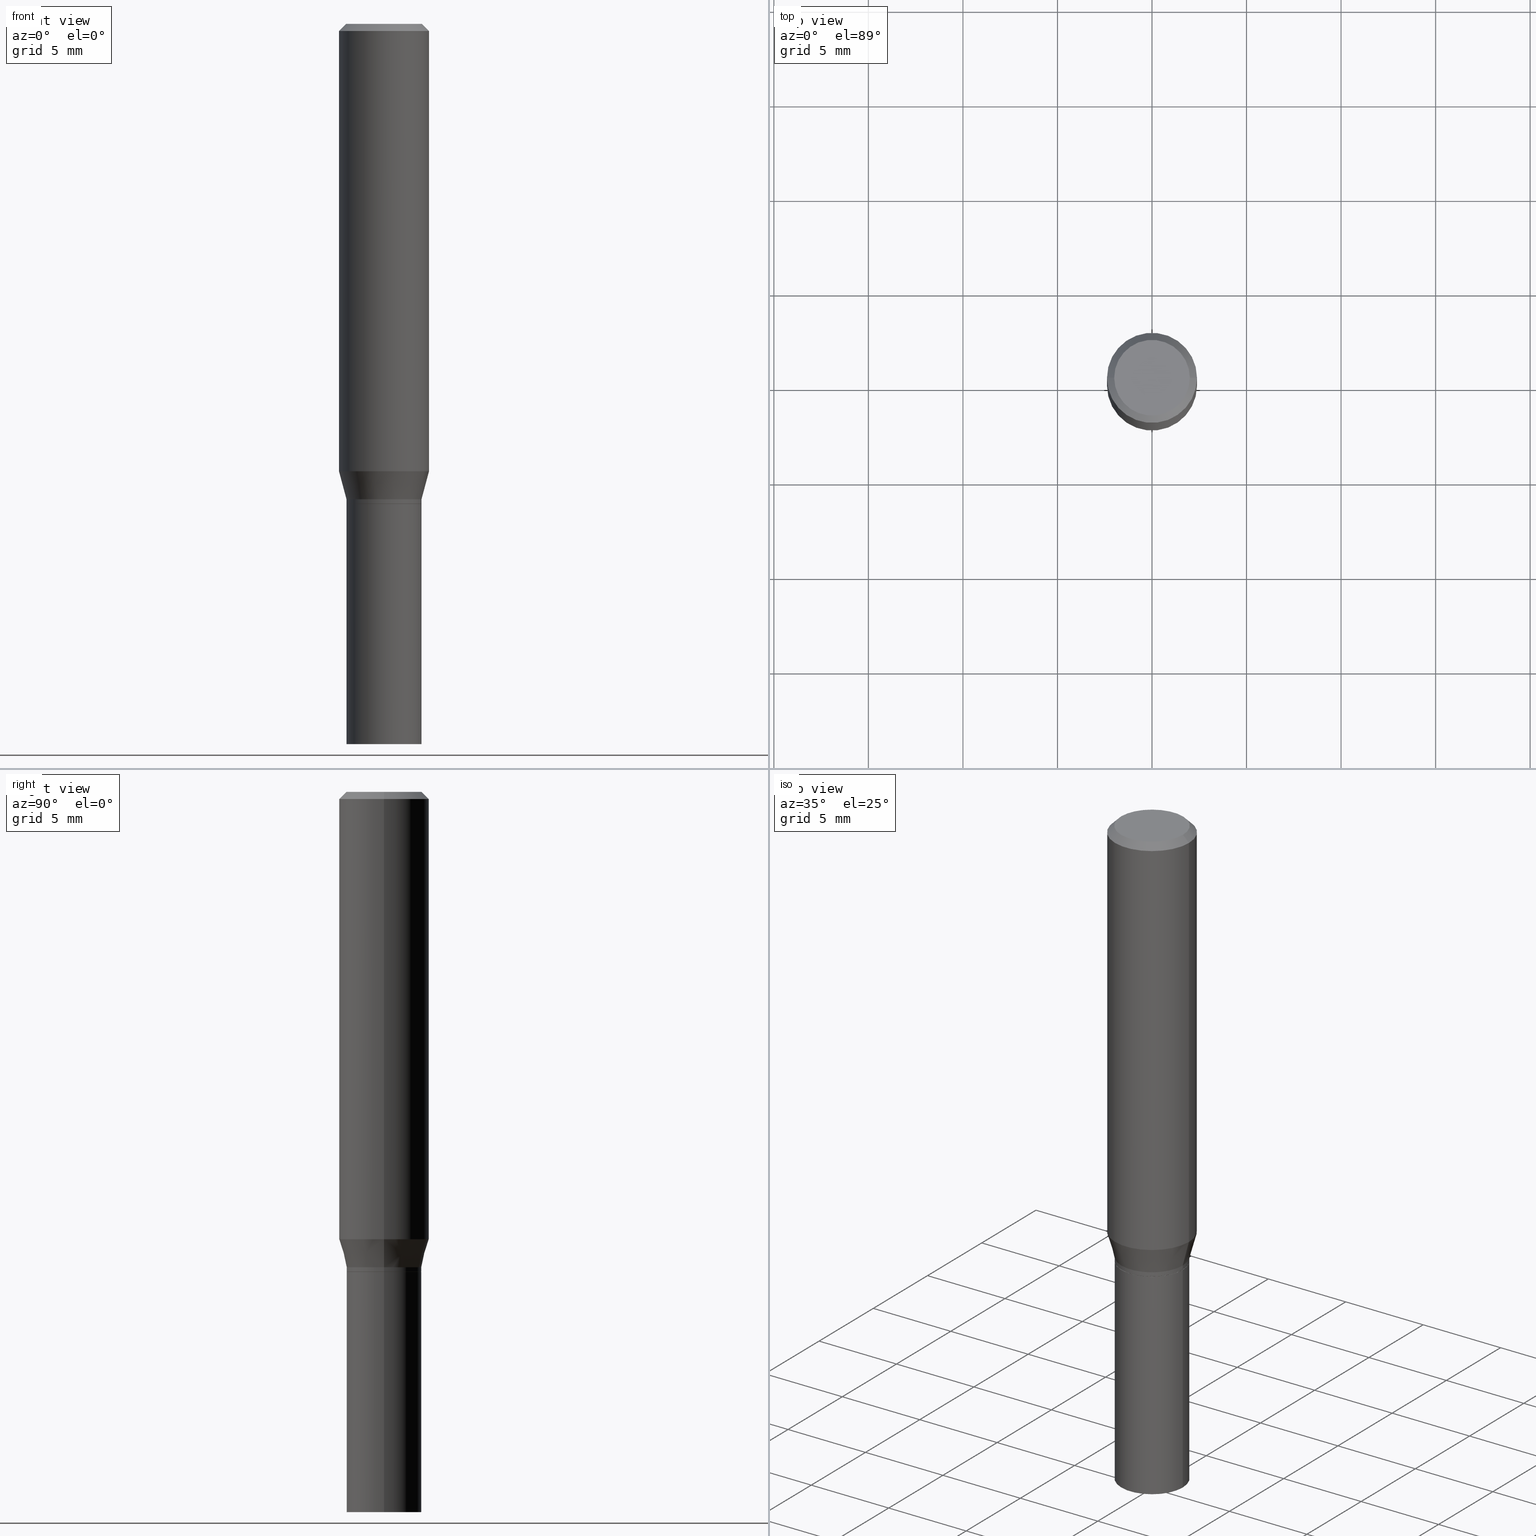
[diagram: canonical four-view strip — front | top / right | iso, engineering-drawing reading convention]
A machine part, canonical four-view strip (front | top / right | iso — engineering-drawing reading convention). The complete STEP part file that produces these views, byte-faithful:
ISO-10303-21;
HEADER;
FILE_DESCRIPTION (( 'STEP AP203' ),
    '1' );
FILE_NAME ('30519.STEP',
    '2024-03-13T16:13:51',
    ( '' ),
    ( '' ),
    'SwSTEP 2.0',
    'SolidWorks 2023',
    '' );
FILE_SCHEMA (( 'CONFIG_CONTROL_DESIGN' ));
ENDSEC;

DATA;
#1 = DIRECTION ( 'NONE',  ( 1.000000000000000000, -6.982962677686266711E-15, 0.000000000000000000 ) ) ;
#2 = DIRECTION ( 'NONE',  ( 1.000000000000000000, -6.982962677686267499E-15, 4.876807983162778740E-29 ) ) ;
#3 = EDGE_CURVE ( 'NONE', #154, #230, #199, .T. ) ;
#4 = ORIENTED_EDGE ( 'NONE', *, *, #166, .T. ) ;
#5 = AXIS2_PLACEMENT_3D ( 'NONE', #135, #377, #349 ) ;
#6 = ORIENTED_EDGE ( 'NONE', *, *, #17, .F. ) ;
#7 = PRODUCT_RELATED_PRODUCT_CATEGORY ( 'detail', '', ( #411 ) ) ;
#8 = DIRECTION ( 'NONE',  ( 1.000000000000000000, -6.982962677686266711E-15, 0.000000000000000000 ) ) ;
#9 = CARTESIAN_POINT ( 'NONE',  ( 3.668203209277704895E-29, -5.237222008264718177E-15, -1.500000000000000222 ) ) ;
#10 = EDGE_CURVE ( 'NONE', #308, #464, #155, .T. ) ;
#11 = DIRECTION ( 'NONE',  ( -2.445468806185136597E-29, 3.491481338843145583E-15, 1.000000000000000000 ) ) ;
#12 = APPROVAL_DATE_TIME ( #321, #262 ) ;
#13 = CARTESIAN_POINT ( 'NONE',  ( 0.07810000000000004439, -4.035104983301021910E-15, -0.9995000000000000551 ) ) ;
#14 = VECTOR ( 'NONE', #94, 39.37007874015748143 ) ;
#15 = DIRECTION ( 'NONE',  ( 0.7071067811865469066, -7.319954787623254468E-15, -0.7071067811865481278 ) ) ;
#16 = PERSON_AND_ORGANIZATION_ROLE ( 'creator' ) ;
#17 = EDGE_CURVE ( 'NONE', #217, #190, #434, .T. ) ;
#18 = CARTESIAN_POINT ( 'NONE',  ( -0.09375000000000001388, -9.863727894979499703E-16, -0.01499999999999999944 ) ) ;
#19 = EDGE_LOOP ( 'NONE', ( #229, #270, #41, #375 ) ) ;
#20 = EDGE_CURVE ( 'NONE', #136, #407, #265, .T. ) ;
#21 = ORIENTED_EDGE ( 'NONE', *, *, #44, .F. ) ;
#22 = VECTOR ( 'NONE', #347, 39.37007874015748143 ) ;
#23 = CARTESIAN_POINT ( 'NONE',  ( 0.000000000000000000, 0.000000000000000000, 0.000000000000000000 ) ) ;
#24 = CONICAL_SURFACE ( 'NONE', #228, 0.07810000000000004439, 0.2617993877991501850 ) ;
#25 = VERTEX_POINT ( 'NONE', #278 ) ;
#26 = CARTESIAN_POINT ( 'NONE',  ( 2.445468806185136877E-29, -3.491481338843145977E-15, -1.000000000000000222 ) ) ;
#27 = CARTESIAN_POINT ( 'NONE',  ( -0.07810000000000004439, -2.934801721545085420E-15, -0.9995000000000000551 ) ) ;
#28 = ADVANCED_FACE ( 'NONE', ( #412 ), #413, .T. ) ;
#29 =( LENGTH_UNIT ( ) NAMED_UNIT ( * ) SI_UNIT ( $, .METRE. ) );
#30 = DIRECTION ( 'NONE',  ( -2.445468806185136597E-29, 3.491481338843145583E-15, 1.000000000000000000 ) ) ;
#31 = DIRECTION ( 'NONE',  ( -2.445468806185136597E-29, 3.491481338843145583E-15, 1.000000000000000000 ) ) ;
#32 = DIRECTION ( 'NONE',  ( -2.445468806185136597E-29, 3.491481338843145583E-15, 1.000000000000000000 ) ) ;
#33 = CIRCLE ( 'NONE', #128, 0.07875000000000001443 ) ;
#34 = LOCAL_TIME ( 12, 13, 51.00000000000000000, #82 ) ;
#35 = CARTESIAN_POINT ( 'NONE',  ( 3.668203209277705088E-31, -5.237222008264718399E-17, -0.01499999999999999944 ) ) ;
#36 = AXIS2_PLACEMENT_3D ( 'NONE', #238, #343, #8 ) ;
#37 = LOCAL_TIME ( 12, 13, 51.00000000000000000, #287 ) ;
#38 = ORIENTED_EDGE ( 'NONE', *, *, #20, .T. ) ;
#39 = ORIENTED_EDGE ( 'NONE', *, *, #198, .F. ) ;
#40 = DIRECTION ( 'NONE',  ( -2.445468806185136597E-29, 3.491481338843145583E-15, 1.000000000000000000 ) ) ;
#41 = ORIENTED_EDGE ( 'NONE', *, *, #195, .F. ) ;
#42 = DIRECTION ( 'NONE',  ( 1.000000000000000000, -6.982962677686267499E-15, 4.876807983162778740E-29 ) ) ;
#43 = CIRCLE ( 'NONE', #256, 0.07810000000000004439 ) ;
#44 = EDGE_CURVE ( 'NONE', #433, #239, #33, .T. ) ;
#45 = ORIENTED_EDGE ( 'NONE', *, *, #44, .T. ) ;
#46 = DIRECTION ( 'NONE',  ( 1.000000000000000000, -6.982962677686265922E-15, 4.876176775795935793E-29 ) ) ;
#47 = CARTESIAN_POINT ( 'NONE',  ( -0.07875000000000001443, 5.760944209091169839E-16, 1.724453912998643423E-17 ) ) ;
#48 = CARTESIAN_POINT ( 'NONE',  ( 3.668203209277704895E-29, -5.237222008264718177E-15, -1.500000000000000222 ) ) ;
#49 = APPLICATION_PROTOCOL_DEFINITION ( 'international standard', 'config_control_design', 1994, #450 ) ;
#50 = ORIENTED_EDGE ( 'NONE', *, *, #192, .T. ) ;
#51 = FACE_OUTER_BOUND ( 'NONE', #87, .T. ) ;
#52 = ADVANCED_BREP_SHAPE_REPRESENTATION ( '30519', ( #73, #396, #303 ), #368 ) ;
#53 = PERSON_AND_ORGANIZATION ( #188, #129 ) ;
#54 = EDGE_CURVE ( 'NONE', #402, #175, #118, .T. ) ;
#55 = EDGE_LOOP ( 'NONE', ( #117, #218, #50, #457 ) ) ;
#56 = APPROVAL_STATUS ( 'not_yet_approved' ) ;
#57 = CARTESIAN_POINT ( 'NONE',  ( 2.278182611636715174E-29, -3.252640988463440710E-15, -0.9315934048615475138 ) ) ;
#58 = EDGE_CURVE ( 'NONE', #190, #217, #280, .T. ) ;
#59 = EDGE_LOOP ( 'NONE', ( #150, #108 ) ) ;
#60 = DIRECTION ( 'NONE',  ( -2.445468806185136597E-29, 3.491481338843145583E-15, 1.000000000000000000 ) ) ;
#61 = AXIS2_PLACEMENT_3D ( 'NONE', #373, #449, #247 ) ;
#62 = CARTESIAN_POINT ( 'NONE',  ( 3.576687321579069994E-29, -5.368277968210015545E-15, -1.500000000000000222 ) ) ;
#63 = CARTESIAN_POINT ( 'NONE',  ( 2.421014118123285332E-29, -3.456566525454714328E-15, -0.9900000000000001021 ) ) ;
#64 = CYLINDRICAL_SURFACE ( 'NONE', #210, 0.07810000000000000275 ) ;
#65 = PRODUCT_DEFINITION ( 'UNKNOWN', '', #324, #90 ) ;
#66 = ORIENTED_EDGE ( 'NONE', *, *, #337, .F. ) ;
#67 = AXIS2_PLACEMENT_3D ( 'NONE', #131, #441, #423 ) ;
#68 = CC_DESIGN_APPROVAL ( #262, ( #65 ) ) ;
#69 = ORIENTED_EDGE ( 'NONE', *, *, #401, .T. ) ;
#70 = ADVANCED_FACE ( 'NONE', ( #341 ), #196, .T. ) ;
#71 = ORIENTED_EDGE ( 'NONE', *, *, #192, .F. ) ;
#72 = ORIENTED_EDGE ( 'NONE', *, *, #198, .T. ) ;
#73 = MANIFOLD_SOLID_BREP ( 'Body-Move/Copy2[1]', #462 ) ;
#74 = VECTOR ( 'NONE', #427, 39.37007874015748143 ) ;
#75 = AXIS2_PLACEMENT_3D ( 'NONE', #133, #249, #167 ) ;
#76 = APPROVAL_PERSON_ORGANIZATION ( #89, #262, #248 ) ;
#77 = EDGE_LOOP ( 'NONE', ( #161, #38, #387, #6 ) ) ;
#78 = CARTESIAN_POINT ( 'NONE',  ( 2.421014118123285332E-29, -3.456566525454714328E-15, -0.9900000000000001021 ) ) ;
#79 = ORIENTED_EDGE ( 'NONE', *, *, #54, .F. ) ;
#80 = ORIENTED_EDGE ( 'NONE', *, *, #364, .F. ) ;
#81 = DIRECTION ( 'NONE',  ( 1.000000000000000000, -6.982962677686269077E-15, 0.000000000000000000 ) ) ;
#82 = COORDINATED_UNIVERSAL_TIME_OFFSET ( 5, 0, .BEHIND. ) ;
#83 = EDGE_LOOP ( 'NONE', ( #39, #266, #123, #370 ) ) ;
#84 = DIRECTION ( 'NONE',  ( -2.445468806185136597E-29, 3.491481338843145583E-15, 1.000000000000000000 ) ) ;
#85 = DIRECTION ( 'NONE',  ( 1.000000000000000000, 0.000000000000000000, 0.000000000000000000 ) ) ;
#86 = CIRCLE ( 'NONE', #369, 0.07810000000000004439 ) ;
#87 = EDGE_LOOP ( 'NONE', ( #255, #460, #358, #465 ) ) ;
#88 = LINE ( 'NONE', #378, #97 ) ;
#89 = PERSON_AND_ORGANIZATION ( #188, #129 ) ;
#90 = DESIGN_CONTEXT ( 'detailed design', #450, 'design' ) ;
#91 = DATE_TIME_ROLE ( 'classification_date' ) ;
#92 = DIRECTION ( 'NONE',  ( -2.445468806185136597E-29, 3.491481338843145583E-15, 1.000000000000000000 ) ) ;
#93 = ADVANCED_FACE ( 'NONE', ( #436 ), #420, .F. ) ;
#94 = DIRECTION ( 'NONE',  ( -2.445468806185136877E-29, 3.491481338843145188E-15, 1.000000000000000000 ) ) ;
#95 = ORIENTED_EDGE ( 'NONE', *, *, #263, .F. ) ;
#96 = CARTESIAN_POINT ( 'NONE',  ( 5.453693851273217925E-16, 0.07809999999999651943, -1.000000000000000444 ) ) ;
#97 = VECTOR ( 'NONE', #416, 39.37007874015748143 ) ;
#98 = APPROVAL_PERSON_ORGANIZATION ( #223, #186, #452 ) ;
#99 = LINE ( 'NONE', #388, #74 ) ;
#100 = DIRECTION ( 'NONE',  ( -1.000000000000000000, 6.982962677686265922E-15, -4.876176775795935793E-29 ) ) ;
#101 = CARTESIAN_POINT ( 'NONE',  ( 0.07875000000000001443, -6.179040623491182236E-16, 1.724453912999445534E-17 ) ) ;
#102 = DIRECTION ( 'NONE',  ( 2.445468806185136597E-29, -3.491481338843145583E-15, -1.000000000000000000 ) ) ;
#103 = EDGE_LOOP ( 'NONE', ( #69, #371, #390, #71 ) ) ;
#104 = LINE ( 'NONE', #425, #430 ) ;
#105 = EDGE_CURVE ( 'NONE', #231, #308, #43, .T. ) ;
#106 =( CONVERSION_BASED_UNIT ( 'INCH', #325 ) LENGTH_UNIT ( ) NAMED_UNIT ( #220 ) );
#107 = LINE ( 'NONE', #329, #114 ) ;
#108 = ORIENTED_EDGE ( 'NONE', *, *, #17, .T. ) ;
#109 = CYLINDRICAL_SURFACE ( 'NONE', #211, 0.07810000000000004439 ) ;
#110 = DIRECTION ( 'NONE',  ( 1.000000000000000000, -6.982962677686266711E-15, 0.000000000000000000 ) ) ;
#111 =( NAMED_UNIT ( * ) SI_UNIT ( $, .STERADIAN. ) SOLID_ANGLE_UNIT ( ) );
#112 = ADVANCED_FACE ( 'NONE', ( #453 ), #137, .T. ) ;
#113 = EDGE_LOOP ( 'NONE', ( #4, #45 ) ) ;
#114 = VECTOR ( 'NONE', #328, 39.37007874015748143 ) ;
#115 = CIRCLE ( 'NONE', #351, 0.09375000000000001388 ) ;
#116 = ORIENTED_EDGE ( 'NONE', *, *, #235, .F. ) ;
#117 = ORIENTED_EDGE ( 'NONE', *, *, #3, .F. ) ;
#118 = CIRCLE ( 'NONE', #227, 0.07810000000000004439 ) ;
#119 = AXIS2_PLACEMENT_3D ( 'NONE', #62, #320, #455 ) ;
#120 = DIRECTION ( 'NONE',  ( -2.445468806185136597E-29, 3.491481338843145583E-15, 1.000000000000000000 ) ) ;
#121 = EDGE_LOOP ( 'NONE', ( #409, #140, #152, #66 ) ) ;
#122 = ORIENTED_EDGE ( 'NONE', *, *, #401, .F. ) ;
#123 = ORIENTED_EDGE ( 'NONE', *, *, #205, .T. ) ;
#124 = CARTESIAN_POINT ( 'NONE',  ( 2.421014118123285332E-29, -3.456566525454714328E-15, -0.9900000000000001021 ) ) ;
#125 = EDGE_LOOP ( 'NONE', ( #187, #95 ) ) ;
#126 = LINE ( 'NONE', #279, #22 ) ;
#127 = DIRECTION ( 'NONE',  ( 0.000000000000000000, 0.000000000000000000, 1.000000000000000000 ) ) ;
#128 = AXIS2_PLACEMENT_3D ( 'NONE', #405, #336, #2 ) ;
#129 = ORGANIZATION ( 'UNSPECIFIED', 'UNSPECIFIED', '' ) ;
#130 = PERSON_AND_ORGANIZATION_ROLE ( 'design_supplier' ) ;
#131 = CARTESIAN_POINT ( 'NONE',  ( 5.499083108677934443E-16, 0.07875000000000001443, -2.663318858689025652E-16 ) ) ;
#132 = EDGE_CURVE ( 'NONE', #305, #175, #104, .T. ) ;
#133 = CARTESIAN_POINT ( 'NONE',  ( 2.444246071782044356E-29, -3.489735598173724079E-15, -0.9995000000000000551 ) ) ;
#134 = DIRECTION ( 'NONE',  ( -2.445468806185136597E-29, 3.491481338843145583E-15, 1.000000000000000000 ) ) ;
#135 = CARTESIAN_POINT ( 'NONE',  ( 3.668203209277705088E-31, -5.237222008264718399E-17, -0.01499999999999999944 ) ) ;
#136 = VERTEX_POINT ( 'NONE', #391 ) ;
#137 = CYLINDRICAL_SURFACE ( 'NONE', #383, 0.09375000000000001388 ) ;
#138 = CIRCLE ( 'NONE', #36, 0.07760000000000000231 ) ;
#139 = FACE_OUTER_BOUND ( 'NONE', #361, .T. ) ;
#140 = ORIENTED_EDGE ( 'NONE', *, *, #151, .T. ) ;
#141 = CARTESIAN_POINT ( 'NONE',  ( 2.445468806185136877E-29, -3.491481338843145977E-15, -1.000000000000000222 ) ) ;
#142 = DIRECTION ( 'NONE',  ( 1.000000000000000000, -6.982962677686265922E-15, 0.000000000000000000 ) ) ;
#143 = CARTESIAN_POINT ( 'NONE',  ( 0.000000000000000000, 0.000000000000000000, 0.000000000000000000 ) ) ;
#144 = COORDINATED_UNIVERSAL_TIME_OFFSET ( 5, 0, .BEHIND. ) ;
#145 = CC_DESIGN_PERSON_AND_ORGANIZATION_ASSIGNMENT ( #445, #408, ( #324 ) ) ;
#146 = ADVANCED_FACE ( 'NONE', ( #261 ), #290, .T. ) ;
#147 = DIRECTION ( 'NONE',  ( 1.000000000000000000, -6.982962677686266711E-15, 4.876176775795936353E-29 ) ) ;
#148 = VECTOR ( 'NONE', #340, 39.37007874015748143 ) ;
#149 = EDGE_CURVE ( 'NONE', #25, #402, #362, .T. ) ;
#150 = ORIENTED_EDGE ( 'NONE', *, *, #58, .T. ) ;
#151 = EDGE_CURVE ( 'NONE', #136, #217, #206, .T. ) ;
#152 = ORIENTED_EDGE ( 'NONE', *, *, #58, .F. ) ;
#153 = ADVANCED_FACE ( 'NONE', ( #289 ), #184, .T. ) ;
#154 = VERTEX_POINT ( 'NONE', #316 ) ;
#155 = LINE ( 'NONE', #194, #466 ) ;
#156 = EDGE_CURVE ( 'NONE', #175, #308, #283, .T. ) ;
#157 = CARTESIAN_POINT ( 'NONE',  ( -0.09375000000000001388, 6.661338147750940229E-16, -4.611501647113973995E-30 ) ) ;
#158 = AXIS2_PLACEMENT_3D ( 'NONE', #48, #84, #311 ) ;
#159 = LOCAL_TIME ( 12, 13, 51.00000000000000000, #144 ) ;
#160 = COORDINATED_UNIVERSAL_TIME_OFFSET ( 5, 0, .BEHIND. ) ;
#161 = ORIENTED_EDGE ( 'NONE', *, *, #151, .F. ) ;
#162 = FACE_OUTER_BOUND ( 'NONE', #125, .T. ) ;
#163 = ORIENTED_EDGE ( 'NONE', *, *, #20, .F. ) ;
#164 = DIRECTION ( 'NONE',  ( 1.000000000000000000, -6.982962677686266711E-15, 0.000000000000000000 ) ) ;
#165 = APPROVAL ( #202, 'UNSPECIFIED' ) ;
#166 = EDGE_CURVE ( 'NONE', #239, #433, #295, .T. ) ;
#167 = DIRECTION ( 'NONE',  ( 1.000000000000000000, -6.982962677686269077E-15, 0.000000000000000000 ) ) ;
#168 = AXIS2_PLACEMENT_3D ( 'NONE', #96, #257, #100 ) ;
#169 = DATE_TIME_ROLE ( 'creation_date' ) ;
#170 = CARTESIAN_POINT ( 'NONE',  ( -0.07760000000000000231, -2.940100175893308216E-15, -1.000000000000000222 ) ) ;
#171 = CALENDAR_DATE ( 2024, 13, 3 ) ;
#172 = ORIENTED_EDGE ( 'NONE', *, *, #195, .T. ) ;
#173 = FACE_OUTER_BOUND ( 'NONE', #113, .T. ) ;
#174 = PLANE ( 'NONE',  #119 ) ;
#175 = VERTEX_POINT ( 'NONE', #13 ) ;
#176 = DIRECTION ( 'NONE',  ( 0.7071067811865595631, -2.468850131082382884E-15, 0.7071067811865354713 ) ) ;
#177 = CIRCLE ( 'NONE', #75, 0.07810000000000004439 ) ;
#178 = CC_DESIGN_SECURITY_CLASSIFICATION ( #404, ( #324 ) ) ;
#179 = DIRECTION ( 'NONE',  ( -2.445468806185136597E-29, 3.491481338843145583E-15, 1.000000000000000000 ) ) ;
#180 = ORIENTED_EDGE ( 'NONE', *, *, #263, .T. ) ;
#181 = DIRECTION ( 'NONE',  ( 1.000000000000000000, -6.982962677686269077E-15, 0.000000000000000000 ) ) ;
#182 = CARTESIAN_POINT ( 'NONE',  ( 3.668203209277705088E-31, -5.237222008264718399E-17, -0.01499999999999999944 ) ) ;
#183 = DIRECTION ( 'NONE',  ( 1.000000000000000000, -6.982962677686266711E-15, 4.876176775795935232E-29 ) ) ;
#184 = CONICAL_SURFACE ( 'NONE', #61, 0.07760000000000000231, 0.7853981633974653764 ) ;
#185 = CARTESIAN_POINT ( 'NONE',  ( 0.07760000000000000231, -4.033359242631600406E-15, -1.000000000000000222 ) ) ;
#186 = APPROVAL ( #56, 'UNSPECIFIED' ) ;
#187 = ORIENTED_EDGE ( 'NONE', *, *, #271, .F. ) ;
#188 = PERSON ( 'UNSPECIFIED', 'UNSPECIFIED', 'UNSPECIFIED', ('UNSPECIFIED'), ('UNSPECIFIED'), ('UNSPECIFIED') ) ;
#189 = EDGE_CURVE ( 'NONE', #231, #154, #126, .T. ) ;
#190 = VERTEX_POINT ( 'NONE', #414 ) ;
#191 = DIRECTION ( 'NONE',  ( 2.445468806185136597E-29, -3.491481338843145583E-15, -1.000000000000000000 ) ) ;
#192 = EDGE_CURVE ( 'NONE', #464, #327, #88, .T. ) ;
#193 = VECTOR ( 'NONE', #213, 39.37007874015748143 ) ;
#194 = CARTESIAN_POINT ( 'NONE',  ( 0.07810000000000004439, -4.001935910582012553E-15, -0.9900000000000001021 ) ) ;
#195 = EDGE_CURVE ( 'NONE', #175, #402, #177, .T. ) ;
#196 = CYLINDRICAL_SURFACE ( 'NONE', #244, 0.07810000000000004439 ) ;
#197 = ORIENTED_EDGE ( 'NONE', *, *, #10, .F. ) ;
#198 = EDGE_CURVE ( 'NONE', #433, #327, #380, .T. ) ;
#199 = LINE ( 'NONE', #157, #148 ) ;
#200 = LINE ( 'NONE', #252, #193 ) ;
#201 = AXIS2_PLACEMENT_3D ( 'NONE', #57, #216, #110 ) ;
#202 = APPROVAL_STATUS ( 'not_yet_approved' ) ;
#203 = CARTESIAN_POINT ( 'NONE',  ( 2.445468806185136877E-29, -3.491481338843145977E-15, -1.000000000000000222 ) ) ;
#204 = CARTESIAN_POINT ( 'NONE',  ( 2.445468806185136877E-29, -3.491481338843145977E-15, -1.000000000000000222 ) ) ;
#205 = EDGE_CURVE ( 'NONE', #239, #230, #200, .T. ) ;
#206 = LINE ( 'NONE', #286, #323 ) ;
#207 = CARTESIAN_POINT ( 'NONE',  ( -0.07810000000000004439, -2.744069911257211227E-15, -0.9900000000000001021 ) ) ;
#208 = CLOSED_SHELL ( 'NONE', ( #432, #146, #399, #332, #437, #226, #112, #28, #253, #267, #153, #70 ) ) ;
#209 = PERSON_AND_ORGANIZATION ( #188, #129 ) ;
#210 = AXIS2_PLACEMENT_3D ( 'NONE', #292, #259, #183 ) ;
#211 = AXIS2_PLACEMENT_3D ( 'NONE', #394, #356, #147 ) ;
#212 = PERSON_AND_ORGANIZATION_ROLE ( 'classification_officer' ) ;
#213 = DIRECTION ( 'NONE',  ( -0.7071067811865469066, 2.468850131082250355E-15, -0.7071067811865481278 ) ) ;
#214 = DATE_AND_TIME ( #417, #159 ) ;
#215 = DIRECTION ( 'NONE',  ( -2.445468806185136597E-29, 3.491481338843145583E-15, 1.000000000000000000 ) ) ;
#216 = DIRECTION ( 'NONE',  ( -2.445468806185136597E-29, 3.491481338843145583E-15, 1.000000000000000000 ) ) ;
#217 = VERTEX_POINT ( 'NONE', #384 ) ;
#218 = ORIENTED_EDGE ( 'NONE', *, *, #366, .T. ) ;
#219 = DIRECTION ( 'NONE',  ( 1.000000000000000000, -6.982962677686266711E-15, 0.000000000000000000 ) ) ;
#220 = DIMENSIONAL_EXPONENTS ( 1.000000000000000000, 0.000000000000000000, 0.000000000000000000, 0.000000000000000000, 0.000000000000000000, 0.000000000000000000, 0.000000000000000000 ) ;
#221 = LOCAL_TIME ( 12, 13, 51.00000000000000000, #379 ) ;
#222 = DIRECTION ( 'NONE',  ( -1.000000000000000000, 6.982962677686265922E-15, 0.000000000000000000 ) ) ;
#223 = PERSON_AND_ORGANIZATION ( #188, #129 ) ;
#224 = CARTESIAN_POINT ( 'NONE',  ( 0.09375000000000001388, -3.907293739496527425E-15, -0.9315934048615475138 ) ) ;
#225 = DIRECTION ( 'NONE',  ( 1.000000000000000000, -6.982962677686265922E-15, 4.876176775795935793E-29 ) ) ;
#226 = ADVANCED_FACE ( 'NONE', ( #51 ), #367, .T. ) ;
#227 = AXIS2_PLACEMENT_3D ( 'NONE', #274, #301, #81 ) ;
#228 = AXIS2_PLACEMENT_3D ( 'NONE', #63, #291, #181 ) ;
#229 = ORIENTED_EDGE ( 'NONE', *, *, #271, .T. ) ;
#230 = VERTEX_POINT ( 'NONE', #18 ) ;
#231 = VERTEX_POINT ( 'NONE', #207 ) ;
#232 = AXIS2_PLACEMENT_3D ( 'NONE', #35, #191, #272 ) ;
#233 = LOCAL_TIME ( 12, 13, 51.00000000000000000, #160 ) ;
#234 = ORIENTED_EDGE ( 'NONE', *, *, #288, .T. ) ;
#235 = EDGE_CURVE ( 'NONE', #407, #136, #299, .T. ) ;
#236 = DIRECTION ( 'NONE',  ( 1.000000000000000000, -6.982962677686266711E-15, 4.876176775795936353E-29 ) ) ;
#237 = ORIENTED_EDGE ( 'NONE', *, *, #246, .T. ) ;
#238 = CARTESIAN_POINT ( 'NONE',  ( 2.445468806185136877E-29, -3.491481338843145977E-15, -1.000000000000000222 ) ) ;
#239 = VERTEX_POINT ( 'NONE', #47 ) ;
#240 = DIRECTION ( 'NONE',  ( 1.000000000000000000, -6.982962677686266711E-15, 0.000000000000000000 ) ) ;
#241 = CALENDAR_DATE ( 2024, 13, 3 ) ;
#242 = ORIENTED_EDGE ( 'NONE', *, *, #132, .T. ) ;
#243 = CARTESIAN_POINT ( 'NONE',  ( -4.217098251943042903E-46, 6.020898656931179793E-32, 1.724453912999037237E-17 ) ) ;
#244 = AXIS2_PLACEMENT_3D ( 'NONE', #439, #134, #236 ) ;
#245 = AXIS2_PLACEMENT_3D ( 'NONE', #182, #102, #222 ) ;
#246 = EDGE_CURVE ( 'NONE', #327, #230, #335, .T. ) ;
#247 = DIRECTION ( 'NONE',  ( 1.000000000000000000, -6.982962677686266711E-15, 0.000000000000000000 ) ) ;
#248 = APPROVAL_ROLE ( '' ) ;
#249 = DIRECTION ( 'NONE',  ( -2.445468806185136597E-29, 3.491481338843145583E-15, 1.000000000000000000 ) ) ;
#250 = CARTESIAN_POINT ( 'NONE',  ( 0.000000000000000000, 0.000000000000000000, 0.000000000000000000 ) ) ;
#251 = FACE_OUTER_BOUND ( 'NONE', #350, .T. ) ;
#252 = CARTESIAN_POINT ( 'NONE',  ( -0.09375000000000001388, 6.022805309504404249E-16, -0.01499999999999999944 ) ) ;
#253 = ADVANCED_FACE ( 'NONE', ( #173 ), #447, .F. ) ;
#254 = MECHANICAL_CONTEXT ( 'NONE', #296, 'mechanical' ) ;
#255 = ORIENTED_EDGE ( 'NONE', *, *, #189, .F. ) ;
#256 = AXIS2_PLACEMENT_3D ( 'NONE', #78, #215, #318 ) ;
#257 = DIRECTION ( 'NONE',  ( 2.438088387897960049E-29, -3.491481338843145188E-15, -1.000000000000000000 ) ) ;
#258 = CONICAL_SURFACE ( 'NONE', #245, 0.09375000000000001388, 0.7853981633974473908 ) ;
#259 = DIRECTION ( 'NONE',  ( -2.445468806185136597E-29, 3.491481338843145583E-15, 1.000000000000000000 ) ) ;
#260 = ORIENTED_EDGE ( 'NONE', *, *, #364, .T. ) ;
#261 = FACE_OUTER_BOUND ( 'NONE', #19, .T. ) ;
#262 = APPROVAL ( #451, 'UNSPECIFIED' ) ;
#263 = EDGE_CURVE ( 'NONE', #25, #305, #138, .T. ) ;
#264 = CARTESIAN_POINT ( 'NONE',  ( 0.09375000000000001388, -7.070249711157346819E-16, -0.01499999999999999944 ) ) ;
#265 = CIRCLE ( 'NONE', #268, 0.07810000000000000275 ) ;
#266 = ORIENTED_EDGE ( 'NONE', *, *, #166, .F. ) ;
#267 = ADVANCED_FACE ( 'NONE', ( #162 ), #306, .F. ) ;
#268 = AXIS2_PLACEMENT_3D ( 'NONE', #9, #438, #342 ) ;
#269 = ORIENTED_EDGE ( 'NONE', *, *, #105, .F. ) ;
#270 = ORIENTED_EDGE ( 'NONE', *, *, #149, .T. ) ;
#271 = EDGE_CURVE ( 'NONE', #305, #25, #312, .T. ) ;
#272 = DIRECTION ( 'NONE',  ( -1.000000000000000000, 6.982962677686265922E-15, 0.000000000000000000 ) ) ;
#273 = CIRCLE ( 'NONE', #201, 0.09375000000000001388 ) ;
#274 = CARTESIAN_POINT ( 'NONE',  ( 2.444246071782044356E-29, -3.489735598173724079E-15, -0.9995000000000000551 ) ) ;
#275 = ORIENTED_EDGE ( 'NONE', *, *, #288, .F. ) ;
#276 = EDGE_LOOP ( 'NONE', ( #80, #440, #443, #269 ) ) ;
#277 = CARTESIAN_POINT ( 'NONE',  ( 2.445468806185136877E-29, -3.491481338843145977E-15, -1.000000000000000222 ) ) ;
#278 = CARTESIAN_POINT ( 'NONE',  ( -0.07760000000000000231, -2.937450948719197015E-15, -1.000000000000000222 ) ) ;
#279 = CARTESIAN_POINT ( 'NONE',  ( -0.07810000000000004439, -2.901632648826075669E-15, -0.9900000000000001021 ) ) ;
#280 = CIRCLE ( 'NONE', #422, 0.07810000000000000275 ) ;
#281 = AXIS2_PLACEMENT_3D ( 'NONE', #426, #31, #142 ) ;
#282 = DATE_AND_TIME ( #241, #34 ) ;
#283 = LINE ( 'NONE', #419, #14 ) ;
#284 = APPROVAL_ROLE ( '' ) ;
#285 = ADVANCED_FACE ( 'NONE', ( #297 ), #64, .T. ) ;
#286 = CARTESIAN_POINT ( 'NONE',  ( -0.07810000000000000275, 5.549338766286382647E-16, -3.841688305489081275E-30 ) ) ;
#287 = COORDINATED_UNIVERSAL_TIME_OFFSET ( 5, 0, .BEHIND. ) ;
#288 = EDGE_CURVE ( 'NONE', #308, #231, #86, .T. ) ;
#289 = FACE_OUTER_BOUND ( 'NONE', #298, .T. ) ;
#290 = CONICAL_SURFACE ( 'NONE', #330, 0.07760000000000000231, 0.7853981633974653764 ) ;
#291 = DIRECTION ( 'NONE',  ( -2.445468806185136597E-29, 3.491481338843145583E-15, 1.000000000000000000 ) ) ;
#292 = CARTESIAN_POINT ( 'NONE',  ( 0.000000000000000000, 0.000000000000000000, 0.000000000000000000 ) ) ;
#293 = CC_DESIGN_PERSON_AND_ORGANIZATION_ASSIGNMENT ( #53, #313, ( #411 ) ) ;
#294 = FACE_OUTER_BOUND ( 'NONE', #121, .T. ) ;
#295 = CIRCLE ( 'NONE', #302, 0.07875000000000001443 ) ;
#296 = APPLICATION_CONTEXT ( 'configuration controlled 3d designs of mechanical parts and assemblies' ) ;
#297 = FACE_OUTER_BOUND ( 'NONE', #77, .T. ) ;
#298 = EDGE_LOOP ( 'NONE', ( #334, #180, #242, #79 ) ) ;
#299 = CIRCLE ( 'NONE', #158, 0.07810000000000000275 ) ;
#300 = ORIENTED_EDGE ( 'NONE', *, *, #205, .F. ) ;
#301 = DIRECTION ( 'NONE',  ( -2.445468806185136597E-29, 3.491481338843145583E-15, 1.000000000000000000 ) ) ;
#302 = AXIS2_PLACEMENT_3D ( 'NONE', #243, #92, #42 ) ;
#303 = AXIS2_PLACEMENT_3D ( 'NONE', #250, #127, #85 ) ;
#304 = DATE_AND_TIME ( #415, #233 ) ;
#305 = VERTEX_POINT ( 'NONE', #185 ) ;
#306 = PLANE ( 'NONE',  #376 ) ;
#307 = UNCERTAINTY_MEASURE_WITH_UNIT (LENGTH_MEASURE( 1.000000000000000082E-05 ), #106, 'distance_accuracy_value', 'NONE');
#308 = VERTEX_POINT ( 'NONE', #459 ) ;
#309 = DIRECTION ( 'NONE',  ( -2.445468806185136597E-29, 3.491481338843145583E-15, 1.000000000000000000 ) ) ;
#310 = PERSON_AND_ORGANIZATION ( #188, #129 ) ;
#311 = DIRECTION ( 'NONE',  ( 1.000000000000000000, -6.982962677686266711E-15, 0.000000000000000000 ) ) ;
#312 = CIRCLE ( 'NONE', #400, 0.07760000000000000231 ) ;
#313 = PERSON_AND_ORGANIZATION_ROLE ( 'design_owner' ) ;
#314 = APPROVAL_DATE_TIME ( #304, #165 ) ;
#315 = DIRECTION ( 'NONE',  ( -0.7071067811865595631, 7.493145998870398336E-15, 0.7071067811865354713 ) ) ;
#316 = CARTESIAN_POINT ( 'NONE',  ( -0.09375000000000001388, -2.586507173688346391E-15, -0.9315934048615475138 ) ) ;
#317 = SHAPE_DEFINITION_REPRESENTATION ( #382, #52 ) ;
#318 = DIRECTION ( 'NONE',  ( 1.000000000000000000, -6.982962677686269077E-15, 0.000000000000000000 ) ) ;
#319 = ADVANCED_FACE ( 'NONE', ( #294 ), #365, .T. ) ;
#320 = DIRECTION ( 'NONE',  ( -2.438088387897960049E-29, 3.491481338843145188E-15, 1.000000000000000000 ) ) ;
#321 = DATE_AND_TIME ( #171, #221 ) ;
#322 = EDGE_LOOP ( 'NONE', ( #116, #163 ) ) ;
#323 = VECTOR ( 'NONE', #444, 39.37007874015748143 ) ;
#324 = PRODUCT_DEFINITION_FORMATION_WITH_SPECIFIED_SOURCE ( 'ANY', '', #411, .NOT_KNOWN. ) ;
#325 = LENGTH_MEASURE_WITH_UNIT ( LENGTH_MEASURE( 0.02539999999999999897 ), #29 );
#326 = DIRECTION ( 'NONE',  ( 1.000000000000000000, -6.982962677686266711E-15, 0.000000000000000000 ) ) ;
#327 = VERTEX_POINT ( 'NONE', #264 ) ;
#328 = DIRECTION ( 'NONE',  ( -2.445468806185136877E-29, 3.491481338843145188E-15, 1.000000000000000000 ) ) ;
#329 = CARTESIAN_POINT ( 'NONE',  ( 0.07810000000000000275, -5.453693851272974364E-16, 3.808294061896625703E-30 ) ) ;
#330 = AXIS2_PLACEMENT_3D ( 'NONE', #26, #60, #219 ) ;
#331 = CC_DESIGN_PERSON_AND_ORGANIZATION_ASSIGNMENT ( #448, #130, ( #324 ) ) ;
#332 = ADVANCED_FACE ( 'NONE', ( #395 ), #429, .T. ) ;
#333 = DIRECTION ( 'NONE',  ( 1.000000000000000000, -6.982962677686266711E-15, 4.876176775795935232E-29 ) ) ;
#334 = ORIENTED_EDGE ( 'NONE', *, *, #149, .F. ) ;
#335 = CIRCLE ( 'NONE', #5, 0.09375000000000001388 ) ;
#336 = DIRECTION ( 'NONE',  ( -2.445468806185136597E-29, 3.491481338843145583E-15, 1.000000000000000000 ) ) ;
#337 = EDGE_CURVE ( 'NONE', #407, #190, #107, .T. ) ;
#338 = DIRECTION ( 'NONE',  ( 0.2588190451025214611, 1.565188264969620982E-15, 0.9659258262890679791 ) ) ;
#339 = CARTESIAN_POINT ( 'NONE',  ( 0.000000000000000000, 0.000000000000000000, 0.000000000000000000 ) ) ;
#340 = DIRECTION ( 'NONE',  ( -2.445468806185136877E-29, 3.491481338843145188E-15, 1.000000000000000000 ) ) ;
#341 = FACE_OUTER_BOUND ( 'NONE', #276, .T. ) ;
#342 = DIRECTION ( 'NONE',  ( 1.000000000000000000, -6.982962677686266711E-15, 0.000000000000000000 ) ) ;
#343 = DIRECTION ( 'NONE',  ( -2.445468806185136597E-29, 3.491481338843145583E-15, 1.000000000000000000 ) ) ;
#344 = ORIENTED_EDGE ( 'NONE', *, *, #156, .F. ) ;
#345 = DIRECTION ( 'NONE',  ( -2.445468806185136597E-29, 3.491481338843145583E-15, 1.000000000000000000 ) ) ;
#346 = CARTESIAN_POINT ( 'NONE',  ( 0.09375000000000001388, -6.955439073737282618E-16, -0.01499999999999999944 ) ) ;
#347 = DIRECTION ( 'NONE',  ( -0.2588190451025214611, 5.211531920934550253E-15, 0.9659258262890679791 ) ) ;
#348 = VECTOR ( 'NONE', #15, 39.37007874015748143 ) ;
#349 = DIRECTION ( 'NONE',  ( 1.000000000000000000, -6.982962677686265922E-15, 0.000000000000000000 ) ) ;
#350 = EDGE_LOOP ( 'NONE', ( #172, #260, #275, #344 ) ) ;
#351 = AXIS2_PLACEMENT_3D ( 'NONE', #363, #179, #326 ) ;
#352 = DIRECTION ( 'NONE',  ( 1.000000000000000000, -6.982962677686269077E-15, 0.000000000000000000 ) ) ;
#353 = DATE_AND_TIME ( #386, #37 ) ;
#354 = APPROVAL_DATE_TIME ( #214, #186 ) ;
#355 = CC_DESIGN_DATE_AND_TIME_ASSIGNMENT ( #282, #91, ( #404 ) ) ;
#356 = DIRECTION ( 'NONE',  ( -2.445468806185136597E-29, 3.491481338843145583E-15, 1.000000000000000000 ) ) ;
#357 = CARTESIAN_POINT ( 'NONE',  ( 2.421014118123285332E-29, -3.456566525454714328E-15, -0.9900000000000001021 ) ) ;
#358 = ORIENTED_EDGE ( 'NONE', *, *, #10, .T. ) ;
#359 = DIRECTION ( 'NONE',  ( 1.000000000000000000, -6.982962677686265922E-15, 4.876176775795935793E-29 ) ) ;
#360 = FACE_OUTER_BOUND ( 'NONE', #322, .T. ) ;
#361 = EDGE_LOOP ( 'NONE', ( #21, #72, #237, #300 ) ) ;
#362 = LINE ( 'NONE', #170, #392 ) ;
#363 = CARTESIAN_POINT ( 'NONE',  ( 2.278182611636715174E-29, -3.252640988463440710E-15, -0.9315934048615475138 ) ) ;
#364 = EDGE_CURVE ( 'NONE', #402, #231, #99, .T. ) ;
#365 = CYLINDRICAL_SURFACE ( 'NONE', #463, 0.07810000000000000275 ) ;
#366 = EDGE_CURVE ( 'NONE', #154, #464, #273, .T. ) ;
#367 = CONICAL_SURFACE ( 'NONE', #446, 0.07810000000000004439, 0.2617993877991501850 ) ;
#368 =( GEOMETRIC_REPRESENTATION_CONTEXT ( 3 ) GLOBAL_UNCERTAINTY_ASSIGNED_CONTEXT ( ( #307 ) ) GLOBAL_UNIT_ASSIGNED_CONTEXT ( ( #106, #458, #111 ) ) REPRESENTATION_CONTEXT ( 'NONE', 'WORKASPACE' ) );
#369 = AXIS2_PLACEMENT_3D ( 'NONE', #357, #397, #428 ) ;
#370 = ORIENTED_EDGE ( 'NONE', *, *, #442, .T. ) ;
#371 = ORIENTED_EDGE ( 'NONE', *, *, #3, .T. ) ;
#372 = EDGE_LOOP ( 'NONE', ( #234, #374, #122, #197 ) ) ;
#373 = CARTESIAN_POINT ( 'NONE',  ( 2.445468806185136877E-29, -3.491481338843145977E-15, -1.000000000000000222 ) ) ;
#374 = ORIENTED_EDGE ( 'NONE', *, *, #189, .T. ) ;
#375 = ORIENTED_EDGE ( 'NONE', *, *, #132, .F. ) ;
#376 = AXIS2_PLACEMENT_3D ( 'NONE', #277, #410, #46 ) ;
#377 = DIRECTION ( 'NONE',  ( -2.445468806185136597E-29, 3.491481338843145583E-15, 1.000000000000000000 ) ) ;
#378 = CARTESIAN_POINT ( 'NONE',  ( 0.09375000000000001388, -6.546527510330875041E-16, 4.571415727308690506E-30 ) ) ;
#379 = COORDINATED_UNIVERSAL_TIME_OFFSET ( 5, 0, .BEHIND. ) ;
#380 = LINE ( 'NONE', #346, #348 ) ;
#381 = PERSON_AND_ORGANIZATION ( #188, #129 ) ;
#382 = PRODUCT_DEFINITION_SHAPE ( 'NONE', 'NONE',  #65 ) ;
#383 = AXIS2_PLACEMENT_3D ( 'NONE', #339, #120, #359 ) ;
#384 = CARTESIAN_POINT ( 'NONE',  ( -0.07810000000000000275, -3.809417796925293812E-15, -1.000000000000000222 ) ) ;
#385 = APPROVAL_PERSON_ORGANIZATION ( #310, #165, #284 ) ;
#386 = CALENDAR_DATE ( 2024, 13, 3 ) ;
#387 = ORIENTED_EDGE ( 'NONE', *, *, #337, .T. ) ;
#388 = CARTESIAN_POINT ( 'NONE',  ( -0.07810000000000004439, 5.549338766286385606E-16, -3.841688305489084077E-30 ) ) ;
#389 = FACE_OUTER_BOUND ( 'NONE', #372, .T. ) ;
#390 = ORIENTED_EDGE ( 'NONE', *, *, #246, .F. ) ;
#391 = CARTESIAN_POINT ( 'NONE',  ( -0.07810000000000000275, -3.809417796925293812E-15, -1.500000000000000222 ) ) ;
#392 = VECTOR ( 'NONE', #315, 39.37007874015748143 ) ;
#393 = CC_DESIGN_APPROVAL ( #186, ( #404 ) ) ;
#394 = CARTESIAN_POINT ( 'NONE',  ( 0.000000000000000000, 0.000000000000000000, 0.000000000000000000 ) ) ;
#395 = FACE_OUTER_BOUND ( 'NONE', #103, .T. ) ;
#396 = MANIFOLD_SOLID_BREP ( 'Body-Move/Copy2[2]', #208 ) ;
#397 = DIRECTION ( 'NONE',  ( -2.445468806185136597E-29, 3.491481338843145583E-15, 1.000000000000000000 ) ) ;
#398 = ADVANCED_FACE ( 'NONE', ( #360 ), #174, .F. ) ;
#399 = ADVANCED_FACE ( 'NONE', ( #139 ), #258, .T. ) ;
#400 = AXIS2_PLACEMENT_3D ( 'NONE', #204, #11, #164 ) ;
#401 = EDGE_CURVE ( 'NONE', #464, #154, #115, .T. ) ;
#402 = VERTEX_POINT ( 'NONE', #27 ) ;
#403 = AXIS2_PLACEMENT_3D ( 'NONE', #203, #345, #1 ) ;
#404 = SECURITY_CLASSIFICATION ( '', '', #418 ) ;
#405 = CARTESIAN_POINT ( 'NONE',  ( -4.217098251943042903E-46, 6.020898656931179793E-32, 1.724453912999037237E-17 ) ) ;
#406 = CC_DESIGN_DATE_AND_TIME_ASSIGNMENT ( #353, #169, ( #65 ) ) ;
#407 = VERTEX_POINT ( 'NONE', #461 ) ;
#408 = PERSON_AND_ORGANIZATION_ROLE ( 'creator' ) ;
#409 = ORIENTED_EDGE ( 'NONE', *, *, #235, .T. ) ;
#410 = DIRECTION ( 'NONE',  ( -2.438088387897960049E-29, 3.491481338843145188E-15, 1.000000000000000000 ) ) ;
#411 = PRODUCT ( '30519', '30519', '', ( #254 ) ) ;
#412 = FACE_OUTER_BOUND ( 'NONE', #83, .T. ) ;
#413 = CONICAL_SURFACE ( 'NONE', #232, 0.09375000000000001388, 0.7853981633974473908 ) ;
#414 = CARTESIAN_POINT ( 'NONE',  ( 0.07810000000000000275, -4.036850723970443413E-15, -1.000000000000000222 ) ) ;
#415 = CALENDAR_DATE ( 2024, 13, 3 ) ;
#416 = DIRECTION ( 'NONE',  ( -2.445468806185136877E-29, 3.491481338843145188E-15, 1.000000000000000000 ) ) ;
#417 = CALENDAR_DATE ( 2024, 13, 3 ) ;
#418 = SECURITY_CLASSIFICATION_LEVEL ( 'unclassified' ) ;
#419 = CARTESIAN_POINT ( 'NONE',  ( 0.07810000000000004439, -5.453693851272977322E-16, 3.808294061896628505E-30 ) ) ;
#420 = PLANE ( 'NONE',  #168 ) ;
#421 = APPLICATION_PROTOCOL_DEFINITION ( 'international standard', 'config_control_design', 1994, #296 ) ;
#422 = AXIS2_PLACEMENT_3D ( 'NONE', #141, #40, #240 ) ;
#423 = DIRECTION ( 'NONE',  ( -1.000000000000000000, 6.982962677686265922E-15, -4.876176775795935793E-29 ) ) ;
#424 = CC_DESIGN_PERSON_AND_ORGANIZATION_ASSIGNMENT ( #381, #212, ( #404 ) ) ;
#425 = CARTESIAN_POINT ( 'NONE',  ( 0.07760000000000000231, -4.033359242631600406E-15, -1.000000000000000222 ) ) ;
#426 = CARTESIAN_POINT ( 'NONE',  ( 3.668203209277705088E-31, -5.237222008264718399E-17, -0.01499999999999999944 ) ) ;
#427 = DIRECTION ( 'NONE',  ( -2.445468806185136877E-29, 3.491481338843145188E-15, 1.000000000000000000 ) ) ;
#428 = DIRECTION ( 'NONE',  ( 1.000000000000000000, -6.982962677686269077E-15, 0.000000000000000000 ) ) ;
#429 = CYLINDRICAL_SURFACE ( 'NONE', #454, 0.09375000000000001388 ) ;
#430 = VECTOR ( 'NONE', #176, 39.37007874015748143 ) ;
#431 = CC_DESIGN_PERSON_AND_ORGANIZATION_ASSIGNMENT ( #209, #16, ( #65 ) ) ;
#432 = ADVANCED_FACE ( 'NONE', ( #251 ), #109, .T. ) ;
#433 = VERTEX_POINT ( 'NONE', #101 ) ;
#434 = CIRCLE ( 'NONE', #403, 0.07810000000000000275 ) ;
#435 = CC_DESIGN_APPROVAL ( #165, ( #324 ) ) ;
#436 = FACE_OUTER_BOUND ( 'NONE', #59, .T. ) ;
#437 = ADVANCED_FACE ( 'NONE', ( #389 ), #24, .T. ) ;
#438 = DIRECTION ( 'NONE',  ( -2.445468806185136597E-29, 3.491481338843145583E-15, 1.000000000000000000 ) ) ;
#439 = CARTESIAN_POINT ( 'NONE',  ( 0.000000000000000000, 0.000000000000000000, 0.000000000000000000 ) ) ;
#440 = ORIENTED_EDGE ( 'NONE', *, *, #54, .T. ) ;
#441 = DIRECTION ( 'NONE',  ( 2.438088387897960049E-29, -3.491481338843145188E-15, -1.000000000000000000 ) ) ;
#442 = EDGE_CURVE ( 'NONE', #230, #327, #456, .T. ) ;
#443 = ORIENTED_EDGE ( 'NONE', *, *, #156, .T. ) ;
#444 = DIRECTION ( 'NONE',  ( -2.445468806185136877E-29, 3.491481338843145188E-15, 1.000000000000000000 ) ) ;
#445 = PERSON_AND_ORGANIZATION ( #188, #129 ) ;
#446 = AXIS2_PLACEMENT_3D ( 'NONE', #124, #309, #352 ) ;
#447 = PLANE ( 'NONE',  #67 ) ;
#448 = PERSON_AND_ORGANIZATION ( #188, #129 ) ;
#449 = DIRECTION ( 'NONE',  ( -2.445468806185136597E-29, 3.491481338843145583E-15, 1.000000000000000000 ) ) ;
#450 = APPLICATION_CONTEXT ( 'configuration controlled 3d designs of mechanical parts and assemblies' ) ;
#451 = APPROVAL_STATUS ( 'not_yet_approved' ) ;
#452 = APPROVAL_ROLE ( '' ) ;
#453 = FACE_OUTER_BOUND ( 'NONE', #55, .T. ) ;
#454 = AXIS2_PLACEMENT_3D ( 'NONE', #143, #30, #225 ) ;
#455 = DIRECTION ( 'NONE',  ( 1.000000000000000000, -6.982962677686265922E-15, 4.876176775795935793E-29 ) ) ;
#456 = CIRCLE ( 'NONE', #281, 0.09375000000000001388 ) ;
#457 = ORIENTED_EDGE ( 'NONE', *, *, #442, .F. ) ;
#458 =( NAMED_UNIT ( * ) PLANE_ANGLE_UNIT ( ) SI_UNIT ( $, .RADIAN. ) );
#459 = CARTESIAN_POINT ( 'NONE',  ( 0.07810000000000004439, -4.001935910582012553E-15, -0.9900000000000001021 ) ) ;
#460 = ORIENTED_EDGE ( 'NONE', *, *, #105, .T. ) ;
#461 = CARTESIAN_POINT ( 'NONE',  ( 0.07810000000000000275, -5.782591393392015613E-15, -1.500000000000000222 ) ) ;
#462 = CLOSED_SHELL ( 'NONE', ( #319, #398, #285, #93 ) ) ;
#463 = AXIS2_PLACEMENT_3D ( 'NONE', #23, #32, #333 ) ;
#464 = VERTEX_POINT ( 'NONE', #224 ) ;
#465 = ORIENTED_EDGE ( 'NONE', *, *, #366, .F. ) ;
#466 = VECTOR ( 'NONE', #338, 39.37007874015748143 ) ;
ENDSEC;
END-ISO-10303-21;
